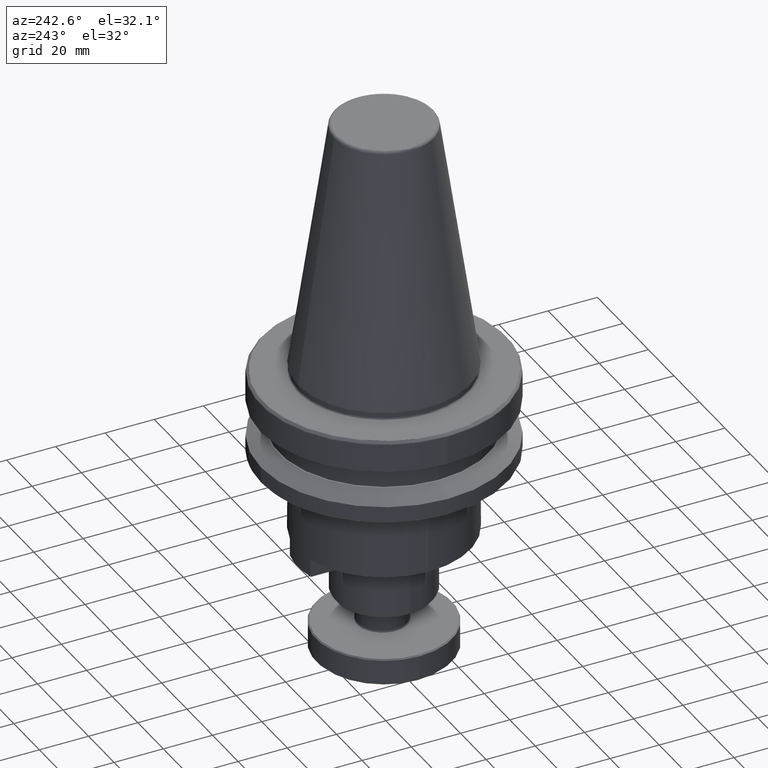
[diagram: clean part render]
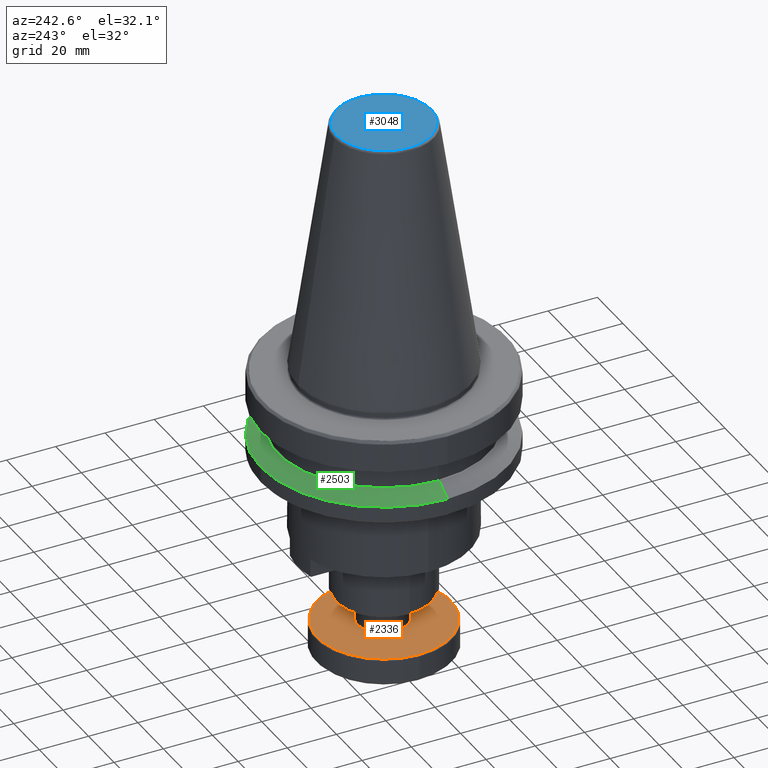
[diagram: same view with three faces highlighted in distinct colors, each labeled with its STEP entity id]
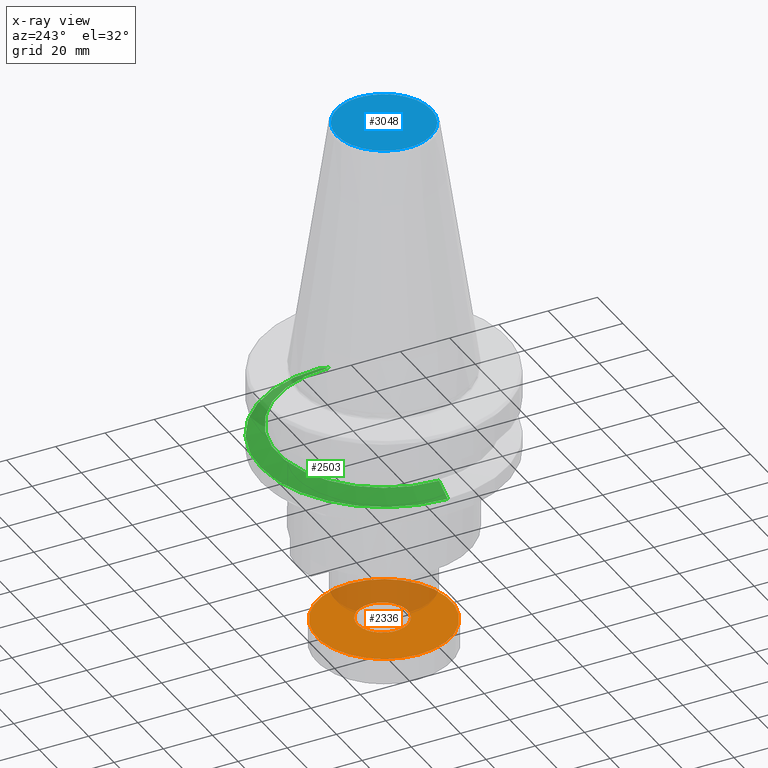
[diagram: x-ray of the same camera — body ghosted, the three highlighted faces saturated]
A machine part, auxiliary view with three faces highlighted in distinct colors.
The next image is the same camera in x-ray (body ghosted, the three faces saturated) — at least one of them is partly hidden behind the body in this view.
Their STEP definitions:

[orange] entity #2336 — the highlighted planar face has unit normal (0, 0, -1).
#107 = VERTEX_POINT ( 'NONE', #1323 ) ;
#125 = FACE_BOUND ( 'NONE', #415, .T. ) ;
#137 = VERTEX_POINT ( 'NONE', #2396 ) ;
#186 = AXIS2_PLACEMENT_3D ( 'NONE', #3387, #1439, #1113 ) ;
#197 = EDGE_LOOP ( 'NONE', ( #803, #2019 ) ) ;
#211 = DIRECTION ( 'NONE',  ( -0.0000000000000000000, -0.0000000000000000000, -1.000000000000000000 ) ) ;
#415 = EDGE_LOOP ( 'NONE', ( #456, #471 ) ) ;
#456 = ORIENTED_EDGE ( 'NONE', *, *, #1277, .T. ) ;
#471 = ORIENTED_EDGE ( 'NONE', *, *, #2550, .T. ) ;
#541 = CIRCLE ( 'NONE', #2717, 27.15222075825949600 ) ;
#785 = DIRECTION ( 'NONE',  ( -1.000000000000000000, 0.0000000000000000000, 0.0000000000000000000 ) ) ;
#803 = ORIENTED_EDGE ( 'NONE', *, *, #2099, .F. ) ;
#857 = CARTESIAN_POINT ( 'NONE',  ( -0.8394499339091927600, -10.03131822428068900, -109.6480174224079700 ) ) ;
#872 = CIRCLE ( 'NONE', #1052, 27.15222075825949600 ) ;
#1052 = AXIS2_PLACEMENT_3D ( 'NONE', #3103, #2346, #1858 ) ;
#1092 = VERTEX_POINT ( 'NONE', #1443 ) ;
#1113 = DIRECTION ( 'NONE',  ( -1.000000000000000000, 0.0000000000000000000, -1.356232433399958100E-015 ) ) ;
#1223 = DIRECTION ( 'NONE',  ( -1.000000000000000000, 0.0000000000000000000, 1.356232433399958300E-015 ) ) ;
#1226 = DIRECTION ( 'NONE',  ( -1.360479912552554700E-015, 2.739057354788854800E-016, -1.000000000000000000 ) ) ;
#1228 = CARTESIAN_POINT ( 'NONE',  ( 1.180157684470991600, 1.544741963999877600E-016, -109.6480174224079700 ) ) ;
#1277 = EDGE_CURVE ( 'NONE', #1092, #1474, #2980, .T. ) ;
#1323 = CARTESIAN_POINT ( 'NONE',  ( -27.15222075825949600, 0.0000000000000000000, -109.6480174224080000 ) ) ;
#1410 = AXIS2_PLACEMENT_3D ( 'NONE', #1228, #1226, #1223 ) ;
#1439 = DIRECTION ( 'NONE',  ( 1.360479912552554300E-015, -2.739057354788854300E-016, -1.000000000000000000 ) ) ;
#1443 = CARTESIAN_POINT ( 'NONE',  ( 3.199765302851177700, 10.03131822428068200, -109.6480174226593500 ) ) ;
#1446 = DIRECTION ( 'NONE',  ( 0.0000000000000000000, 0.0000000000000000000, -1.000000000000000000 ) ) ;
#1474 = VERTEX_POINT ( 'NONE', #857 ) ;
#1647 = PLANE ( 'NONE',  #2816 ) ;
#1858 = DIRECTION ( 'NONE',  ( -1.000000000000000000, 0.0000000000000000000, 0.0000000000000000000 ) ) ;
#2019 = ORIENTED_EDGE ( 'NONE', *, *, #2141, .F. ) ;
#2067 = FACE_OUTER_BOUND ( 'NONE', #197, .T. ) ;
#2099 = EDGE_CURVE ( 'NONE', #107, #137, #541, .T. ) ;
#2141 = EDGE_CURVE ( 'NONE', #137, #107, #872, .T. ) ;
#2170 = CARTESIAN_POINT ( 'NONE',  ( -31.11248475614487300, -16.07399591123400400, -109.6480174224079000 ) ) ;
#2336 = ADVANCED_FACE ( 'NONE', ( #2067, #125 ), #1647, .F. ) ;
#2346 = DIRECTION ( 'NONE',  ( -0.0000000000000000000, -0.0000000000000000000, -1.000000000000000000 ) ) ;
#2396 = CARTESIAN_POINT ( 'NONE',  ( 27.15222075825949600, 3.355804194113158500E-015, -109.6480174224080000 ) ) ;
#2550 = EDGE_CURVE ( 'NONE', #1474, #1092, #3269, .T. ) ;
#2595 = CARTESIAN_POINT ( 'NONE',  ( 0.0000000000000000000, 0.0000000000000000000, -109.6480174224080000 ) ) ;
#2717 = AXIS2_PLACEMENT_3D ( 'NONE', #2595, #211, #785 ) ;
#2816 = AXIS2_PLACEMENT_3D ( 'NONE', #2170, #1446, #3184 ) ;
#2980 = CIRCLE ( 'NONE', #1410, 10.23260280910996500 ) ;
#3103 = CARTESIAN_POINT ( 'NONE',  ( 0.0000000000000000000, 0.0000000000000000000, -109.6480174224080000 ) ) ;
#3184 = DIRECTION ( 'NONE',  ( 0.3233881578541860100, 0.9462663997837373900, 0.0000000000000000000 ) ) ;
#3269 = CIRCLE ( 'NONE', #186, 10.23260280910996700 ) ;
#3387 = CARTESIAN_POINT ( 'NONE',  ( 1.180157684470993300, -1.544741963999877300E-016, -109.6480174224079700 ) ) ;

[blue] entity #3048 — the highlighted planar face has unit normal (0, 0, 1).
#24 = VERTEX_POINT ( 'NONE', #2160 ) ;
#304 = CARTESIAN_POINT ( 'NONE',  ( -19.21428326074989100, 0.0000000000000000000, 101.7999999998288700 ) ) ;
#801 = VERTEX_POINT ( 'NONE', #1964 ) ;
#962 = CARTESIAN_POINT ( 'NONE',  ( -19.21428326062249400, -38.42856652208889300, 101.7999999997148000 ) ) ;
#1248 =( BOUNDED_CURVE ( )  B_SPLINE_CURVE ( 3, ( #304, #2406, #3328, #2100 ),
 .UNSPECIFIED., .F., .F. ) 
 B_SPLINE_CURVE_WITH_KNOTS ( ( 4, 4 ),
 ( 0.0000000000000000000, 1.000000000000000000 ),
 .UNSPECIFIED. ) 
 CURVE ( )  GEOMETRIC_REPRESENTATION_ITEM ( )  RATIONAL_B_SPLINE_CURVE ( ( 0.9606698271414689800, 0.3202232757138228600, 0.3202232757138228600, 0.9606698271414689800 ) ) 
 REPRESENTATION_ITEM ( '' )  );
#1425 = DIRECTION ( 'NONE',  ( 1.000000000000000000, 0.0000000000000000000, -0.0000000000000000000 ) ) ;
#1726 = CARTESIAN_POINT ( 'NONE',  ( 19.21428326074988700, 0.0000000000000000000, 101.7999999998288700 ) ) ;
#1924 = CARTESIAN_POINT ( 'NONE',  ( -19.44485466400000500, -19.44485466400000500, 101.8000000000000000 ) ) ;
#1964 = CARTESIAN_POINT ( 'NONE',  ( -19.21428326074989100, 0.0000000000000000000, 101.7999999998288700 ) ) ;
#1980 = CARTESIAN_POINT ( 'NONE',  ( 19.21428326062249400, -38.42856652208889300, 101.7999999997148000 ) ) ;
#2100 = CARTESIAN_POINT ( 'NONE',  ( 19.21428326074988700, 0.0000000000000000000, 101.7999999998288800 ) ) ;
#2160 = CARTESIAN_POINT ( 'NONE',  ( 19.21428326074988700, 0.0000000000000000000, 101.7999999998288800 ) ) ;
#2267 = ORIENTED_EDGE ( 'NONE', *, *, #2372, .F. ) ;
#2372 = EDGE_CURVE ( 'NONE', #801, #24, #1248, .T. ) ;
#2406 = CARTESIAN_POINT ( 'NONE',  ( -19.21428326062250100, 38.42856652208890000, 101.7999999997147900 ) ) ;
#2434 =( BOUNDED_CURVE ( )  B_SPLINE_CURVE ( 3, ( #1726, #1980, #962, #2753 ),
 .UNSPECIFIED., .F., .T. ) 
 B_SPLINE_CURVE_WITH_KNOTS ( ( 4, 4 ),
 ( 0.0000000000000000000, 1.000000000000000000 ),
 .UNSPECIFIED. ) 
 CURVE ( )  GEOMETRIC_REPRESENTATION_ITEM ( )  RATIONAL_B_SPLINE_CURVE ( ( 0.9606698271414702000, 0.3202232757138232500, 0.3202232757138232500, 0.9606698271414702000 ) ) 
 REPRESENTATION_ITEM ( '' )  );
#2594 = ORIENTED_EDGE ( 'NONE', *, *, #2770, .F. ) ;
#2694 = PLANE ( 'NONE',  #3051 ) ;
#2753 = CARTESIAN_POINT ( 'NONE',  ( -19.21428326074989100, 0.0000000000000000000, 101.7999999998288700 ) ) ;
#2770 = EDGE_CURVE ( 'NONE', #24, #801, #2434, .T. ) ;
#2932 = EDGE_LOOP ( 'NONE', ( #2267, #2594 ) ) ;
#2952 = DIRECTION ( 'NONE',  ( 0.0000000000000000000, 0.0000000000000000000, 1.000000000000000000 ) ) ;
#3048 = ADVANCED_FACE ( 'NONE', ( #3357 ), #2694, .T. ) ;
#3051 = AXIS2_PLACEMENT_3D ( 'NONE', #1924, #2952, #1425 ) ;
#3328 = CARTESIAN_POINT ( 'NONE',  ( 19.21428326062250100, 38.42856652208890000, 101.7999999997147900 ) ) ;
#3357 = FACE_OUTER_BOUND ( 'NONE', #2932, .T. ) ;

[green] entity #2503 — the highlighted conical surface has half-angle 60 deg.
#47 = CARTESIAN_POINT ( 'NONE',  ( 43.14069408088523300, 5.703222643826316100E-015, -26.69999999765068600 ) ) ;
#246 = ORIENTED_EDGE ( 'NONE', *, *, #2678, .F. ) ;
#294 = EDGE_CURVE ( 'NONE', #1670, #1278, #2111, .T. ) ;
#332 = DIRECTION ( 'NONE',  ( -0.0000000000000000000, -0.0000000000000000000, -1.000000000000000000 ) ) ;
#399 = VERTEX_POINT ( 'NONE', #3213 ) ;
#414 = FACE_OUTER_BOUND ( 'NONE', #1902, .T. ) ;
#491 = ORIENTED_EDGE ( 'NONE', *, *, #1316, .F. ) ;
#564 = AXIS2_PLACEMENT_3D ( 'NONE', #2606, #1085, #2858 ) ;
#613 = DIRECTION ( 'NONE',  ( -1.000000000000000000, 0.0000000000000000000, 0.0000000000000000000 ) ) ;
#806 = ORIENTED_EDGE ( 'NONE', *, *, #2935, .T. ) ;
#897 = CARTESIAN_POINT ( 'NONE',  ( 0.0000000000000000000, 0.0000000000000000000, -26.69999999765068600 ) ) ;
#899 = EDGE_CURVE ( 'NONE', #1956, #1860, #2665, .T. ) ;
#1085 = DIRECTION ( 'NONE',  ( -0.0000000000000000000, -0.0000000000000000000, -1.000000000000000000 ) ) ;
#1169 = CARTESIAN_POINT ( 'NONE',  ( -43.14069408088523300, 0.0000000000000000000, -26.69999999765068600 ) ) ;
#1174 = DIRECTION ( 'NONE',  ( -0.8660254037844393700, 0.0000000000000000000, -0.4999999999999987200 ) ) ;
#1222 = ORIENTED_EDGE ( 'NONE', *, *, #294, .T. ) ;
#1246 = CARTESIAN_POINT ( 'NONE',  ( 50.00000000000604000, 6.123233995737506000E-015, -30.66022211650906800 ) ) ;
#1278 = VERTEX_POINT ( 'NONE', #1246 ) ;
#1316 = EDGE_CURVE ( 'NONE', #399, #1956, #2983, .T. ) ;
#1456 = AXIS2_PLACEMENT_3D ( 'NONE', #897, #332, #613 ) ;
#1468 = DIRECTION ( 'NONE',  ( -0.0000000000000000000, -0.0000000000000000000, -1.000000000000000000 ) ) ;
#1670 = VERTEX_POINT ( 'NONE', #47 ) ;
#1745 = CARTESIAN_POINT ( 'NONE',  ( 0.0000000000000000000, 0.0000000000000000000, -30.66022211650906800 ) ) ;
#1747 = DIRECTION ( 'NONE',  ( -0.0000000000000000000, -0.0000000000000000000, -1.000000000000000000 ) ) ;
#1787 = CONICAL_SURFACE ( 'NONE', #1456, 43.14069408088523300, 1.047197551196599200 ) ;
#1860 = VERTEX_POINT ( 'NONE', #1960 ) ;
#1886 = CARTESIAN_POINT ( 'NONE',  ( 43.14069408088523300, 5.283211291915127000E-015, -26.69999999765068600 ) ) ;
#1902 = EDGE_LOOP ( 'NONE', ( #806, #1222, #246, #2068, #491 ) ) ;
#1956 = VERTEX_POINT ( 'NONE', #3282 ) ;
#1960 = CARTESIAN_POINT ( 'NONE',  ( 6.123233995737506000E-015, 50.00000000000604000, -30.66022211650906800 ) ) ;
#1961 = CIRCLE ( 'NONE', #2192, 50.00000000000604000 ) ;
#2068 = ORIENTED_EDGE ( 'NONE', *, *, #899, .F. ) ;
#2111 = LINE ( 'NONE', #1886, #2121 ) ;
#2121 = VECTOR ( 'NONE', #3278, 1000.000000000000000 ) ;
#2192 = AXIS2_PLACEMENT_3D ( 'NONE', #2992, #1468, #3247 ) ;
#2249 = DIRECTION ( 'NONE',  ( -1.000000000000000000, 0.0000000000000000000, 0.0000000000000000000 ) ) ;
#2488 = AXIS2_PLACEMENT_3D ( 'NONE', #1745, #1747, #2249 ) ;
#2503 = ADVANCED_FACE ( 'NONE', ( #414 ), #1787, .T. ) ;
#2596 = CIRCLE ( 'NONE', #564, 43.14069408088523300 ) ;
#2606 = CARTESIAN_POINT ( 'NONE',  ( 0.0000000000000000000, 0.0000000000000000000, -26.69999999765068600 ) ) ;
#2665 = CIRCLE ( 'NONE', #2488, 50.00000000000604000 ) ;
#2678 = EDGE_CURVE ( 'NONE', #1860, #1278, #1961, .T. ) ;
#2858 = DIRECTION ( 'NONE',  ( -1.000000000000000000, 0.0000000000000000000, 0.0000000000000000000 ) ) ;
#2935 = EDGE_CURVE ( 'NONE', #399, #1670, #2596, .T. ) ;
#2983 = LINE ( 'NONE', #1169, #3033 ) ;
#2992 = CARTESIAN_POINT ( 'NONE',  ( 0.0000000000000000000, 0.0000000000000000000, -30.66022211650906800 ) ) ;
#3033 = VECTOR ( 'NONE', #1174, 1000.000000000000000 ) ;
#3213 = CARTESIAN_POINT ( 'NONE',  ( -43.14069408088523300, 0.0000000000000000000, -26.69999999765068600 ) ) ;
#3247 = DIRECTION ( 'NONE',  ( -1.000000000000000000, 0.0000000000000000000, 0.0000000000000000000 ) ) ;
#3278 = DIRECTION ( 'NONE',  ( 0.8660254037844393700, 1.060575238724907800E-016, -0.4999999999999987200 ) ) ;
#3282 = CARTESIAN_POINT ( 'NONE',  ( -50.00000000000604000, 0.0000000000000000000, -30.66022211650906800 ) ) ;